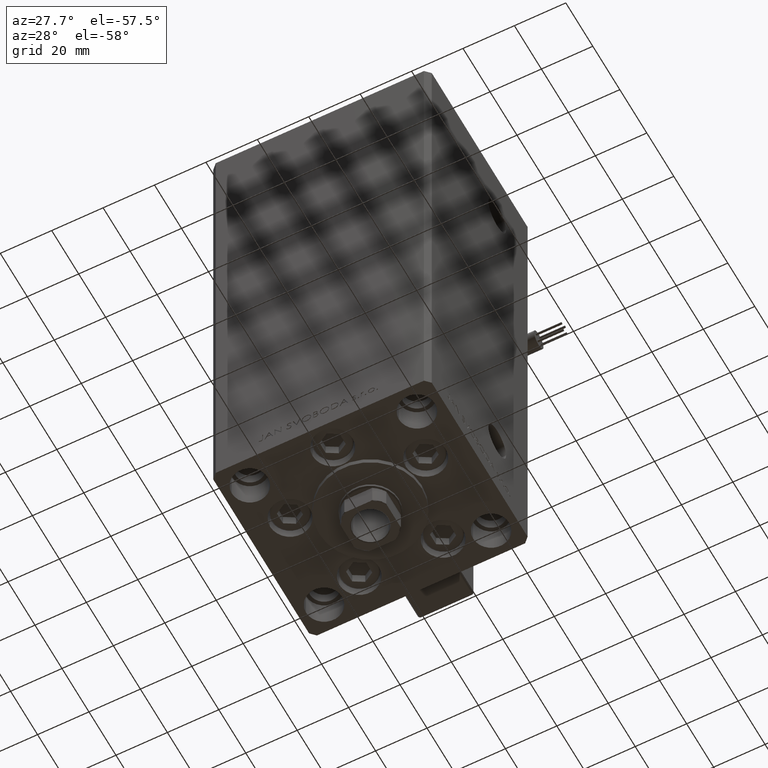
[diagram: clean part render]
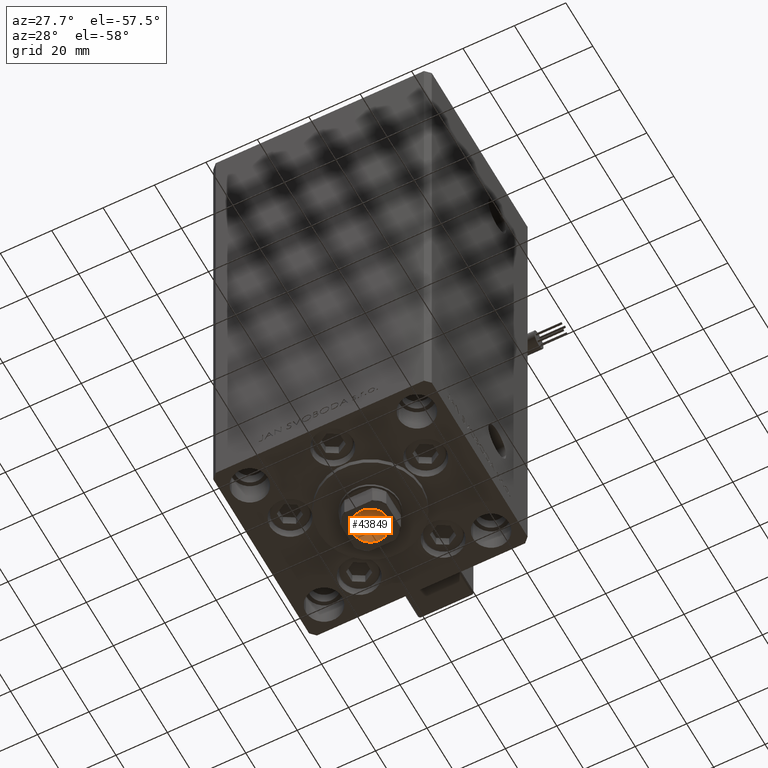
[diagram: same view with one face highlighted and labeled with its STEP entity id]
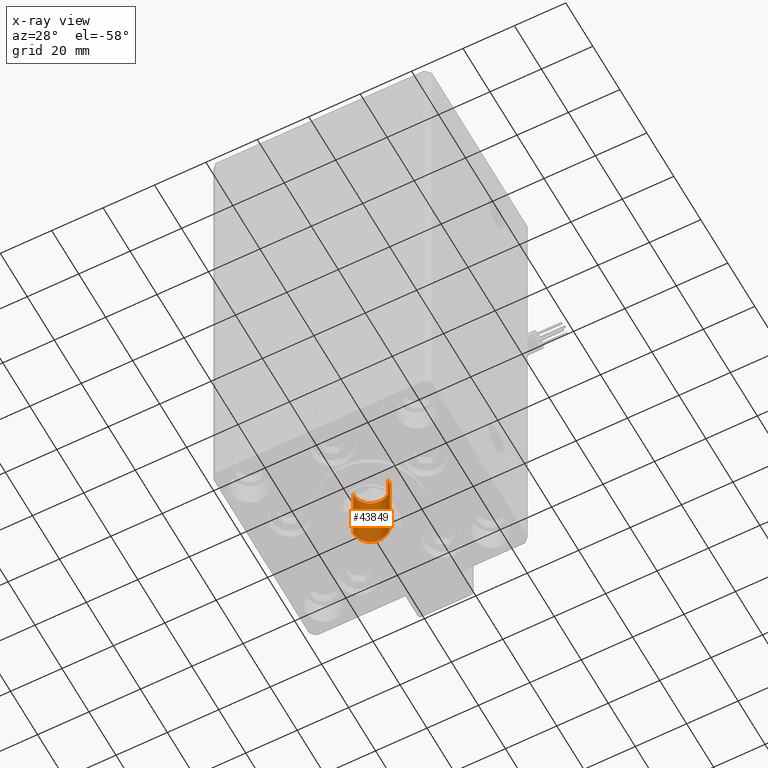
[diagram: x-ray of the same camera — body ghosted, the highlighted face saturated]
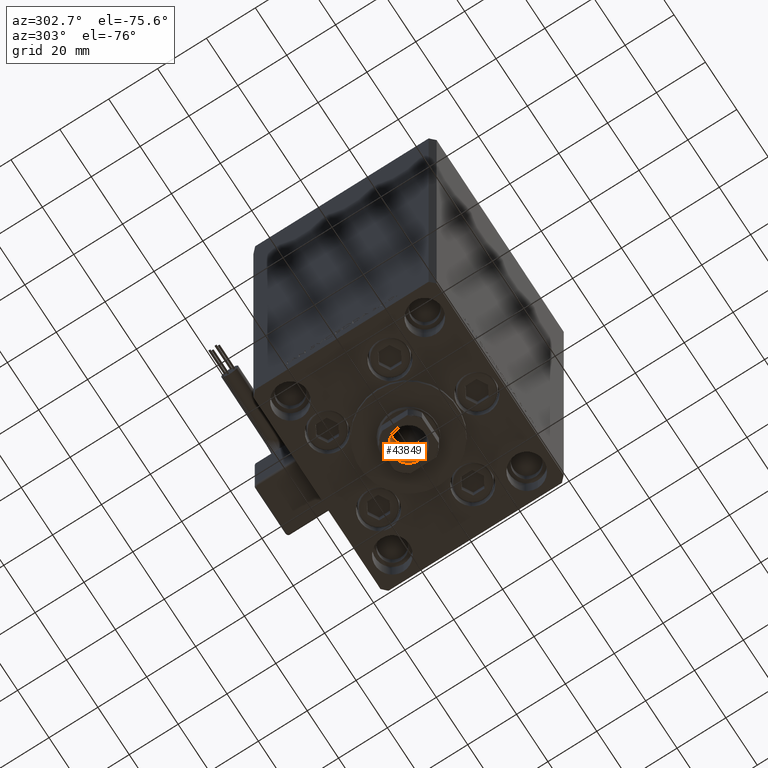
[diagram: same view with one face highlighted and labeled with its STEP entity id]
A machine part, auxiliary view. The second image highlights one B-rep face of the part: STEP entity #43849.
The next image is the same camera in x-ray: the body ghosted, the highlighted face saturated — about 0% of this face is hidden behind the body in this view.
A second angle (auxiliary view) of the same face is appended — the face is thin or edge-on in the first view.
In plain terms, the highlighted cylindrical surface (edge-blend (fillet) strip) has radius 6.75 mm, axis along (0, 0, -1).
Its self-contained STEP definition (entity closure, byte-faithful):
#3445 = CARTESIAN_POINT ( 'NONE',  ( 0.000000000000000000, 0.000000000000000000, 175.7500000000000284 ) ) ;
#7250 = ORIENTED_EDGE ( 'NONE', *, *, #26220, .F. ) ;
#10605 = CYLINDRICAL_SURFACE ( 'NONE', #49438, 6.749999999999995559 ) ;
#11482 = DIRECTION ( 'NONE',  ( -0.000000000000000000, -0.000000000000000000, 1.000000000000000000 ) ) ;
#13051 = DIRECTION ( 'NONE',  ( 1.000000000000000000, 0.000000000000000000, 0.000000000000000000 ) ) ;
#13792 = EDGE_CURVE ( 'NONE', #32414, #52233, #45672, .T. ) ;
#14754 = VERTEX_POINT ( 'NONE', #17842 ) ;
#14818 = VERTEX_POINT ( 'NONE', #19398 ) ;
#15618 = CIRCLE ( 'NONE', #45190, 6.749999999999993783 ) ;
#17842 = CARTESIAN_POINT ( 'NONE',  ( -6.749999999999995559, 8.266365894244628417E-16, 175.4499999999999886 ) ) ;
#17976 = CARTESIAN_POINT ( 'NONE',  ( 0.000000000000000000, 0.000000000000000000, 175.4499999999999886 ) ) ;
#19398 = CARTESIAN_POINT ( 'NONE',  ( -6.749999999999993783, 8.266365894244626445E-16, 150.7500000000000284 ) ) ;
#19561 = DIRECTION ( 'NONE',  ( -0.000000000000000000, -0.000000000000000000, 1.000000000000000000 ) ) ;
#19693 = VECTOR ( 'NONE', #11482, 1000.000000000000000 ) ;
#21098 = CARTESIAN_POINT ( 'NONE',  ( 6.749999999999995559, 0.000000000000000000, 175.7500000000000284 ) ) ;
#23398 = CARTESIAN_POINT ( 'NONE',  ( -6.749999999999995559, 8.266365894244628417E-16, 175.7500000000000284 ) ) ;
#23725 = VECTOR ( 'NONE', #45423, 1000.000000000000000 ) ;
#26220 = EDGE_CURVE ( 'NONE', #32414, #14818, #15618, .T. ) ;
#28976 = ORIENTED_EDGE ( 'NONE', *, *, #35147, .T. ) ;
#31378 = ORIENTED_EDGE ( 'NONE', *, *, #35905, .F. ) ;
#32369 = DIRECTION ( 'NONE',  ( -0.000000000000000000, -0.000000000000000000, 1.000000000000000000 ) ) ;
#32414 = VERTEX_POINT ( 'NONE', #45883 ) ;
#33852 = DIRECTION ( 'NONE',  ( 0.000000000000000000, 0.000000000000000000, 1.000000000000000000 ) ) ;
#35147 = EDGE_CURVE ( 'NONE', #52233, #14754, #42501, .T. ) ;
#35695 = DIRECTION ( 'NONE',  ( 1.000000000000000000, 0.000000000000000000, 0.000000000000000000 ) ) ;
#35905 = EDGE_CURVE ( 'NONE', #14818, #14754, #42967, .T. ) ;
#36369 = ORIENTED_EDGE ( 'NONE', *, *, #13792, .T. ) ;
#38009 = EDGE_LOOP ( 'NONE', ( #31378, #7250, #36369, #28976 ) ) ;
#38093 = DIRECTION ( 'NONE',  ( 1.000000000000000000, 0.000000000000000000, 0.000000000000000000 ) ) ;
#38458 = CARTESIAN_POINT ( 'NONE',  ( 6.749999999999995559, 0.000000000000000000, 175.4499999999999886 ) ) ;
#39414 = FACE_OUTER_BOUND ( 'NONE', #38009, .T. ) ;
#40808 = AXIS2_PLACEMENT_3D ( 'NONE', #17976, #33852, #38093 ) ;
#41351 = CARTESIAN_POINT ( 'NONE',  ( 0.000000000000000000, 0.000000000000000000, 150.7500000000000284 ) ) ;
#42501 = CIRCLE ( 'NONE', #40808, 6.749999999999995559 ) ;
#42967 = LINE ( 'NONE', #23398, #19693 ) ;
#43849 = ADVANCED_FACE ( 'NONE', ( #39414 ), #10605, .F. ) ;
#45190 = AXIS2_PLACEMENT_3D ( 'NONE', #41351, #32369, #13051 ) ;
#45423 = DIRECTION ( 'NONE',  ( -0.000000000000000000, -0.000000000000000000, 1.000000000000000000 ) ) ;
#45672 = LINE ( 'NONE', #21098, #23725 ) ;
#45883 = CARTESIAN_POINT ( 'NONE',  ( 6.749999999999993783, 0.000000000000000000, 150.7500000000000284 ) ) ;
#49438 = AXIS2_PLACEMENT_3D ( 'NONE', #3445, #19561, #35695 ) ;
#52233 = VERTEX_POINT ( 'NONE', #38458 ) ;